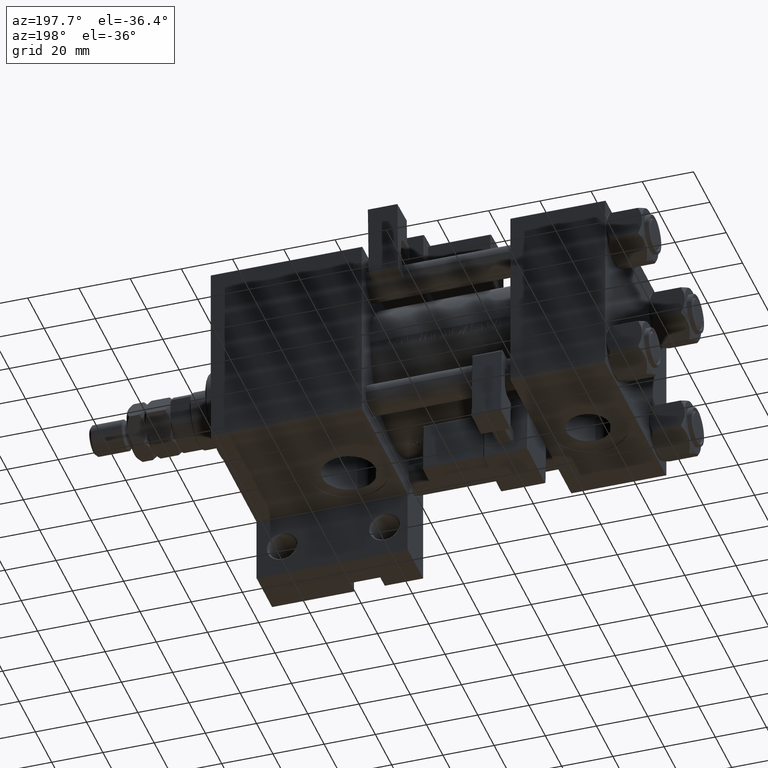
[diagram: clean part render]
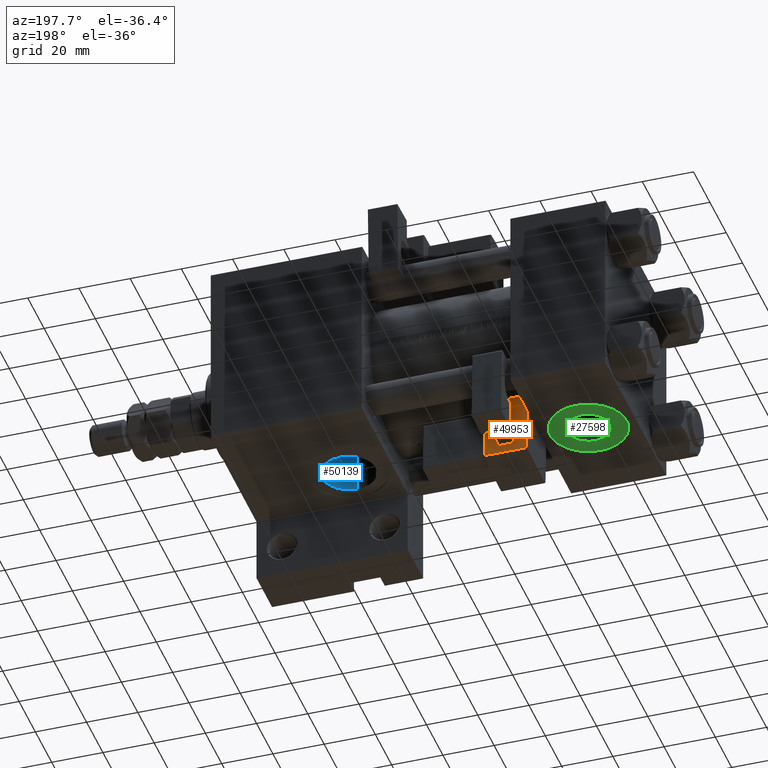
[diagram: same view with three faces highlighted in distinct colors, each labeled with its STEP entity id]
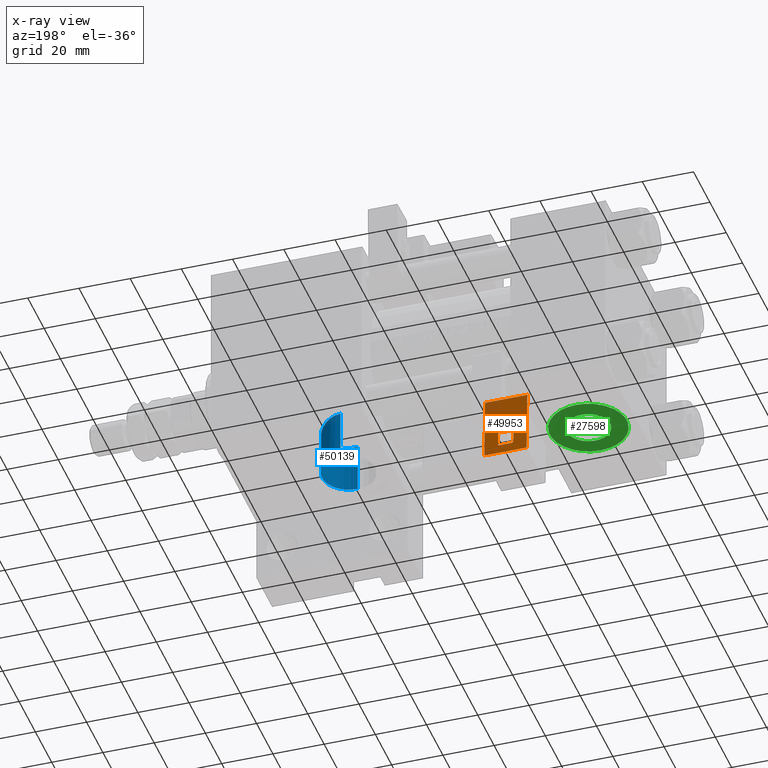
[diagram: x-ray of the same camera — body ghosted, the three highlighted faces saturated]
A machine part, auxiliary view with three faces highlighted in distinct colors.
The next image is the same camera in x-ray (body ghosted, the three faces saturated) — at least one of them is partly hidden behind the body in this view.
Their STEP definitions:

[orange] entity #49953 — the highlighted planar face has unit normal (0, 0.9994, 0.0353).
#83 = EDGE_LOOP ( 'NONE', ( #45173, #45882, #20948, #43269 ) ) ;
#849 = FACE_BOUND ( 'NONE', #10422, .T. ) ;
#1320 = DIRECTION ( 'NONE',  ( -1.000000000000000000, 0.000000000000000000, 0.000000000000000000 ) ) ;
#1529 = CARTESIAN_POINT ( 'NONE',  ( 3.000000000000000888, -17.75000000000000355, 3.000000000000000888 ) ) ;
#1678 = DIRECTION ( 'NONE',  ( 1.334402673828313339E-16, -0.000000000000000000, -1.000000000000000000 ) ) ;
#1778 = VECTOR ( 'NONE', #12145, 1000.000000000000000 ) ;
#2625 = EDGE_CURVE ( 'NONE', #41068, #28923, #13080, .T. ) ;
#3612 = VECTOR ( 'NONE', #50549, 1000.000000000000000 ) ;
#3936 = CARTESIAN_POINT ( 'NONE',  ( 3.000000000000000888, -17.75000000000000355, 3.500000000000008438 ) ) ;
#4368 = CARTESIAN_POINT ( 'NONE',  ( 3.000000000000000000, -17.75000000000000355, 8.499999999999992895 ) ) ;
#4795 = ORIENTED_EDGE ( 'NONE', *, *, #28416, .T. ) ;
#5913 = DIRECTION ( 'NONE',  ( 1.000000000000000000, -0.000000000000000000, 7.228014483236695816E-17 ) ) ;
#6217 = LINE ( 'NONE', #45211, #45724 ) ;
#6904 = DIRECTION ( 'NONE',  ( -1.000000000000000000, 0.000000000000000000, -0.000000000000000000 ) ) ;
#7762 = EDGE_CURVE ( 'NONE', #32464, #43977, #32564, .T. ) ;
#8262 = DIRECTION ( 'NONE',  ( -1.445602896647339163E-16, -0.000000000000000000, 1.000000000000000000 ) ) ;
#8392 = CARTESIAN_POINT ( 'NONE',  ( 8.250000000000003553, -17.75000000000000355, -0.5000000000000002220 ) ) ;
#9370 = PLANE ( 'NONE',  #32697 ) ;
#9462 = VECTOR ( 'NONE', #8262, 1000.000000000000000 ) ;
#9597 = LINE ( 'NONE', #36906, #30819 ) ;
#10422 = EDGE_LOOP ( 'NONE', ( #4795, #13071, #14186, #29185, #50258, #13591, #22027, #28305 ) ) ;
#12145 = DIRECTION ( 'NONE',  ( 1.000000000000000000, -0.000000000000000000, -1.982541115402065110E-16 ) ) ;
#12428 = LINE ( 'NONE', #1529, #28728 ) ;
#12664 = CARTESIAN_POINT ( 'NONE',  ( -3.000000000000000000, -17.75000000000000355, 8.500000000000000000 ) ) ;
#12900 = LINE ( 'NONE', #16297, #1778 ) ;
#13071 = ORIENTED_EDGE ( 'NONE', *, *, #7762, .T. ) ;
#13080 = LINE ( 'NONE', #44809, #42918 ) ;
#13591 = ORIENTED_EDGE ( 'NONE', *, *, #34775, .T. ) ;
#14122 = VERTEX_POINT ( 'NONE', #17113 ) ;
#14124 = CARTESIAN_POINT ( 'NONE',  ( 3.000000000000000888, -17.75000000000000355, 3.500000000000008438 ) ) ;
#14186 = ORIENTED_EDGE ( 'NONE', *, *, #43475, .T. ) ;
#15010 = LINE ( 'NONE', #39707, #35614 ) ;
#16297 = CARTESIAN_POINT ( 'NONE',  ( 8.750000000000000000, -17.75000000000000355, 24.49999999999999645 ) ) ;
#16429 = EDGE_CURVE ( 'NONE', #25717, #14122, #17320, .T. ) ;
#16602 = DIRECTION ( 'NONE',  ( -0.7071067811865474617, 0.000000000000000000, -0.7071067811865474617 ) ) ;
#17112 = LINE ( 'NONE', #44686, #36565 ) ;
#17113 = CARTESIAN_POINT ( 'NONE',  ( -3.000000000000000000, -17.75000000000000355, 3.500000000000015099 ) ) ;
#17174 = VECTOR ( 'NONE', #30709, 1000.000000000000114 ) ;
#17320 = LINE ( 'NONE', #18817, #3612 ) ;
#18508 = VERTEX_POINT ( 'NONE', #23385 ) ;
#18817 = CARTESIAN_POINT ( 'NONE',  ( -3.000000000000000000, -17.75000000000000355, 9.000000000000001776 ) ) ;
#20077 = VECTOR ( 'NONE', #6904, 1000.000000000000000 ) ;
#20948 = ORIENTED_EDGE ( 'NONE', *, *, #39503, .T. ) ;
#21651 = CARTESIAN_POINT ( 'NONE',  ( -8.250000000000003553, -17.75000000000000355, -0.5000000000000002220 ) ) ;
#22027 = ORIENTED_EDGE ( 'NONE', *, *, #23336, .T. ) ;
#23336 = EDGE_CURVE ( 'NONE', #18508, #46148, #12428, .T. ) ;
#23385 = CARTESIAN_POINT ( 'NONE',  ( -2.499999999999984013, -17.75000000000000355, 3.000000000000000444 ) ) ;
#25184 = EDGE_CURVE ( 'NONE', #46148, #28179, #38778, .T. ) ;
#25717 = VERTEX_POINT ( 'NONE', #12664 ) ;
#28179 = VERTEX_POINT ( 'NONE', #14124 ) ;
#28305 = ORIENTED_EDGE ( 'NONE', *, *, #25184, .T. ) ;
#28416 = EDGE_CURVE ( 'NONE', #28179, #32464, #43630, .T. ) ;
#28728 = VECTOR ( 'NONE', #5913, 1000.000000000000000 ) ;
#28923 = VERTEX_POINT ( 'NONE', #8392 ) ;
#29185 = ORIENTED_EDGE ( 'NONE', *, *, #41557, .T. ) ;
#30058 = CARTESIAN_POINT ( 'NONE',  ( 2.499999999999992895, -17.75000000000000355, 9.000000000000001776 ) ) ;
#30709 = DIRECTION ( 'NONE',  ( 0.7071067811865474617, -0.000000000000000000, 0.7071067811865474617 ) ) ;
#30819 = VECTOR ( 'NONE', #1320, 1000.000000000000000 ) ;
#31965 = EDGE_CURVE ( 'NONE', #28923, #38445, #49810, .T. ) ;
#32464 = VERTEX_POINT ( 'NONE', #4368 ) ;
#32564 = LINE ( 'NONE', #44267, #33139 ) ;
#32594 = VERTEX_POINT ( 'NONE', #42009 ) ;
#32697 = AXIS2_PLACEMENT_3D ( 'NONE', #48642, #41344, #33029 ) ;
#33029 = DIRECTION ( 'NONE',  ( 0.000000000000000000, -0.000000000000000000, 1.000000000000000000 ) ) ;
#33139 = VECTOR ( 'NONE', #40621, 1000.000000000000114 ) ;
#34775 = EDGE_CURVE ( 'NONE', #14122, #18508, #15010, .T. ) ;
#35552 = DIRECTION ( 'NONE',  ( 0.7071067811865472397, -0.000000000000000000, -0.7071067811865479058 ) ) ;
#35614 = VECTOR ( 'NONE', #35552, 999.9999999999998863 ) ;
#36084 = CARTESIAN_POINT ( 'NONE',  ( 3.000000000000000000, -17.75000000000000355, 9.000000000000001776 ) ) ;
#36565 = VECTOR ( 'NONE', #16602, 1000.000000000000114 ) ;
#36906 = CARTESIAN_POINT ( 'NONE',  ( 3.000000000000000000, -17.75000000000000355, 9.000000000000001776 ) ) ;
#38445 = VERTEX_POINT ( 'NONE', #21651 ) ;
#38448 = DIRECTION ( 'NONE',  ( 1.334402673828313093E-16, -0.000000000000000000, 1.000000000000000000 ) ) ;
#38778 = LINE ( 'NONE', #3936, #17174 ) ;
#38834 = CARTESIAN_POINT ( 'NONE',  ( 2.499999999999993339, -17.75000000000000355, 3.000000000000000888 ) ) ;
#39503 = EDGE_CURVE ( 'NONE', #32594, #41068, #12900, .T. ) ;
#39707 = CARTESIAN_POINT ( 'NONE',  ( -2.499999999999985789, -17.75000000000000355, 3.000000000000000444 ) ) ;
#40621 = DIRECTION ( 'NONE',  ( -0.7071067811865474617, -0.000000000000000000, 0.7071067811865474617 ) ) ;
#41068 = VERTEX_POINT ( 'NONE', #49698 ) ;
#41344 = DIRECTION ( 'NONE',  ( 0.000000000000000000, 1.000000000000000000, 0.000000000000000000 ) ) ;
#41557 = EDGE_CURVE ( 'NONE', #46354, #25717, #17112, .T. ) ;
#42009 = CARTESIAN_POINT ( 'NONE',  ( -8.250000000000000000, -17.75000000000000355, 24.50000000000000000 ) ) ;
#42262 = CARTESIAN_POINT ( 'NONE',  ( -8.750000000000003553, -17.75000000000000355, -0.5000000000000002220 ) ) ;
#42506 = EDGE_CURVE ( 'NONE', #38445, #32594, #6217, .T. ) ;
#42918 = VECTOR ( 'NONE', #1678, 1000.000000000000000 ) ;
#43269 = ORIENTED_EDGE ( 'NONE', *, *, #2625, .T. ) ;
#43475 = EDGE_CURVE ( 'NONE', #43977, #46354, #9597, .T. ) ;
#43630 = LINE ( 'NONE', #36084, #9462 ) ;
#43977 = VERTEX_POINT ( 'NONE', #30058 ) ;
#44267 = CARTESIAN_POINT ( 'NONE',  ( 2.499999999999992895, -17.75000000000000355, 9.000000000000001776 ) ) ;
#44686 = CARTESIAN_POINT ( 'NONE',  ( -3.000000000000000000, -17.75000000000000355, 8.500000000000000000 ) ) ;
#44809 = CARTESIAN_POINT ( 'NONE',  ( 8.250000000000003553, -17.75000000000000355, -1.000000000000000888 ) ) ;
#44990 = FACE_OUTER_BOUND ( 'NONE', #83, .T. ) ;
#45173 = ORIENTED_EDGE ( 'NONE', *, *, #31965, .T. ) ;
#45211 = CARTESIAN_POINT ( 'NONE',  ( -8.250000000000000000, -17.75000000000000355, 25.00000000000000000 ) ) ;
#45724 = VECTOR ( 'NONE', #38448, 1000.000000000000000 ) ;
#45882 = ORIENTED_EDGE ( 'NONE', *, *, #42506, .T. ) ;
#46148 = VERTEX_POINT ( 'NONE', #38834 ) ;
#46354 = VERTEX_POINT ( 'NONE', #50214 ) ;
#48642 = CARTESIAN_POINT ( 'NONE',  ( 0.000000000000000000, -17.75000000000000355, 0.000000000000000000 ) ) ;
#49698 = CARTESIAN_POINT ( 'NONE',  ( 8.250000000000000000, -17.75000000000000355, 24.49999999999999645 ) ) ;
#49810 = LINE ( 'NONE', #42262, #20077 ) ;
#49953 = ADVANCED_FACE ( 'NONE', ( #44990, #849 ), #9370, .T. ) ;
#50214 = CARTESIAN_POINT ( 'NONE',  ( -2.499999999999999556, -17.75000000000000355, 9.000000000000001776 ) ) ;
#50258 = ORIENTED_EDGE ( 'NONE', *, *, #16429, .T. ) ;
#50549 = DIRECTION ( 'NONE',  ( 0.000000000000000000, 0.000000000000000000, -1.000000000000000000 ) ) ;

[blue] entity #50139 — the highlighted cylindrical surface (edge-blend (fillet) strip) has radius 10.48 mm, axis along (0, 0, -1).
#679 = CARTESIAN_POINT ( 'NONE',  ( 112.0000000000000000, 17.31154528053460595, 10.48000000000000043 ) ) ;
#2195 = CARTESIAN_POINT ( 'NONE',  ( 122.1313400484387728, 20.38402300144351997, -2.703149403782802995 ) ) ;
#2787 = ORIENTED_EDGE ( 'NONE', *, *, #35312, .F. ) ;
#4045 = CARTESIAN_POINT ( 'NONE',  ( 121.0567568288617792, 19.66642481962862377, 5.316205888039934102 ) ) ;
#4559 = CARTESIAN_POINT ( 'NONE',  ( 112.7065125793993161, 17.31154528053461661, 10.48000000000000220 ) ) ;
#5053 = CARTESIAN_POINT ( 'NONE',  ( 120.2840964997319162, 19.29588801359578554, 6.427860973664106581 ) ) ;
#5080 = DIRECTION ( 'NONE',  ( -0.000000000000000000, 1.000000000000000000, -0.000000000000000000 ) ) ;
#6073 = CARTESIAN_POINT ( 'NONE',  ( 121.7782770868340378, 20.04959189068082637, 3.785672786166644155 ) ) ;
#6333 = CARTESIAN_POINT ( 'NONE',  ( 114.7532228650046875, 18.10418172122859914, -10.11778454073332334 ) ) ;
#7341 = CARTESIAN_POINT ( 'NONE',  ( 112.0000000000000000, -29.64191626734007912, 10.48000000000000043 ) ) ;
#7446 = VERTEX_POINT ( 'NONE', #21025 ) ;
#7904 = ORIENTED_EDGE ( 'NONE', *, *, #20448, .T. ) ;
#8941 = CARTESIAN_POINT ( 'NONE',  ( 118.9077004520197391, 18.70668563940341045, 7.888372044495412183 ) ) ;
#9193 = CARTESIAN_POINT ( 'NONE',  ( 117.2783431988158043, 18.62296132975359342, -9.079578748231059038 ) ) ;
#9453 = CARTESIAN_POINT ( 'NONE',  ( 122.1919247727339695, 20.28736638140614801, 2.464686719504276979 ) ) ;
#9710 = CARTESIAN_POINT ( 'NONE',  ( 120.3141828187854827, 19.63782882888615688, -6.389153202019591582 ) ) ;
#9966 = CARTESIAN_POINT ( 'NONE',  ( 118.4153515171921214, 18.95642794454904489, -8.315222310959265783 ) ) ;
#10222 = CARTESIAN_POINT ( 'NONE',  ( 112.0000000000000000, 37.30000000000000426, 0.000000000000000000 ) ) ;
#11035 = VERTEX_POINT ( 'NONE', #41579 ) ;
#12587 = CARTESIAN_POINT ( 'NONE',  ( 117.2741106061284029, 18.12798239970752334, 9.081468815119972504 ) ) ;
#13083 = CARTESIAN_POINT ( 'NONE',  ( 122.4024068837043160, 20.41859243686805314, 1.448715230588819791 ) ) ;
#13341 = CARTESIAN_POINT ( 'NONE',  ( 112.0000000000000000, 17.90669148670407296, -10.48000000000000043 ) ) ;
#13603 = CARTESIAN_POINT ( 'NONE',  ( 114.4123981559800285, 18.05763687149332242, -10.20452973485487469 ) ) ;
#13863 = CARTESIAN_POINT ( 'NONE',  ( 118.9365291620788128, 19.13037051995643267, -7.884902224686587857 ) ) ;
#14114 = CARTESIAN_POINT ( 'NONE',  ( 113.3864931790418780, 17.94550264092830005, -10.41128256049766243 ) ) ;
#14630 = DIRECTION ( 'NONE',  ( 0.000000000000000000, 0.000000000000000000, 1.000000000000000000 ) ) ;
#14810 = FACE_OUTER_BOUND ( 'NONE', #45058, .T. ) ;
#16261 = LINE ( 'NONE', #20932, #43703 ) ;
#18300 = AXIS2_PLACEMENT_3D ( 'NONE', #10222, #19055, #14630 ) ;
#18402 = VERTEX_POINT ( 'NONE', #29885 ) ;
#19055 = DIRECTION ( 'NONE',  ( 0.000000000000000000, 1.000000000000000000, 0.000000000000000000 ) ) ;
#20399 = CARTESIAN_POINT ( 'NONE',  ( 113.3977602511280622, 17.35691331444760621, 10.40932707480384423 ) ) ;
#20448 = EDGE_CURVE ( 'NONE', #18402, #29499, #47117, .T. ) ;
#20657 = CARTESIAN_POINT ( 'NONE',  ( 119.1554208622046644, 18.80582463005525540, 7.664325674930272392 ) ) ;
#20932 = CARTESIAN_POINT ( 'NONE',  ( 112.0000000000000000, -29.64191626734007912, -10.48000000000000043 ) ) ;
#21025 = CARTESIAN_POINT ( 'NONE',  ( 112.0000000000000000, 37.30000000000000426, -10.48000000000000043 ) ) ;
#21406 = CARTESIAN_POINT ( 'NONE',  ( 122.3494634545674131, 20.46856729766160043, -1.685113129936549603 ) ) ;
#21893 = AXIS2_PLACEMENT_3D ( 'NONE', #30676, #34319, #46539 ) ;
#21921 = CARTESIAN_POINT ( 'NONE',  ( 122.2152032703284021, 20.41770509924759835, -2.366563374174189160 ) ) ;
#22594 = EDGE_CURVE ( 'NONE', #11035, #7446, #16261, .T. ) ;
#23795 = CARTESIAN_POINT ( 'NONE',  ( 120.4885550367316966, 19.39180942520643924, 6.155400532351054110 ) ) ;
#24798 = CARTESIAN_POINT ( 'NONE',  ( 119.6288903148261511, 19.00342328076638765, 7.193189023723796538 ) ) ;
#25306 = CARTESIAN_POINT ( 'NONE',  ( 116.6790920904683020, 18.46855674011253257, -9.402201972048073841 ) ) ;
#25814 = CARTESIAN_POINT ( 'NONE',  ( 115.7358006500758165, 18.27098101874567604, -9.797470065351564728 ) ) ;
#26079 = CARTESIAN_POINT ( 'NONE',  ( 122.4818830706633577, 20.50187866395079794, -0.2874684842743789326 ) ) ;
#28944 = CARTESIAN_POINT ( 'NONE',  ( 122.4756842127889485, 20.47313034071807891, 0.7608440181563548288 ) ) ;
#29468 = CARTESIAN_POINT ( 'NONE',  ( 112.6963768780896373, 17.90669148670407651, -10.48000000000000398 ) ) ;
#29499 = VERTEX_POINT ( 'NONE', #45992 ) ;
#29718 = CARTESIAN_POINT ( 'NONE',  ( 121.8969941956776921, 20.11588391330656478, 3.464114667271957604 ) ) ;
#29885 = CARTESIAN_POINT ( 'NONE',  ( 112.0000000000000000, 17.31154528053460595, 10.48000000000000043 ) ) ;
#30676 = CARTESIAN_POINT ( 'NONE',  ( 112.0000000000000000, -29.64191626734007912, 0.000000000000000000 ) ) ;
#31599 = CIRCLE ( 'NONE', #18300, 10.48000000000000043 ) ;
#32357 = CARTESIAN_POINT ( 'NONE',  ( 114.7488058041888195, 17.53568414158152322, 10.11903478889501784 ) ) ;
#32604 = CARTESIAN_POINT ( 'NONE',  ( 118.1180775925098203, 18.41235417149184528, 8.515530294905145681 ) ) ;
#33108 = CARTESIAN_POINT ( 'NONE',  ( 122.4661984625920184, 20.50248344613017437, -0.6419473178149542880 ) ) ;
#34319 = DIRECTION ( 'NONE',  ( -0.000000000000000000, 1.000000000000000000, -0.000000000000000000 ) ) ;
#35312 = EDGE_CURVE ( 'NONE', #18402, #11035, #45368, .T. ) ;
#36258 = CARTESIAN_POINT ( 'NONE',  ( 114.4136788758756182, 17.48366213318432472, 10.20411241860954021 ) ) ;
#37014 = CARTESIAN_POINT ( 'NONE',  ( 115.4137194308145808, 18.21074697844700196, -9.914450050545708493 ) ) ;
#37791 = CARTESIAN_POINT ( 'NONE',  ( 122.3998623926235325, 20.48575010120457662, -1.340249540835263486 ) ) ;
#38986 = EDGE_CURVE ( 'NONE', #29499, #7446, #31599, .T. ) ;
#39063 = DIRECTION ( 'NONE',  ( -0.000000000000000000, 1.000000000000000000, -0.000000000000000000 ) ) ;
#39646 = CARTESIAN_POINT ( 'NONE',  ( 121.3793288346168424, 19.83347954257385481, 4.724518550649254856 ) ) ;
#40416 = CARTESIAN_POINT ( 'NONE',  ( 118.3895294509655542, 18.51012096600892676, 8.313642549596085729 ) ) ;
#40659 = CARTESIAN_POINT ( 'NONE',  ( 119.8546384176099338, 19.10188851773367347, 6.946100117492514769 ) ) ;
#41579 = CARTESIAN_POINT ( 'NONE',  ( 112.0000000000000000, 17.90669148670407296, -10.48000000000000043 ) ) ;
#41685 = CARTESIAN_POINT ( 'NONE',  ( 121.9301004584133636, 20.30113788468792180, -3.368111156433044595 ) ) ;
#41865 = CYLINDRICAL_SURFACE ( 'NONE', #21893, 10.48000000000000043 ) ;
#41944 = CARTESIAN_POINT ( 'NONE',  ( 120.5193670873788676, 19.71882002041633797, -6.112888062289208335 ) ) ;
#43550 = CARTESIAN_POINT ( 'NONE',  ( 115.4121189820832427, 17.65759962146493578, 9.915051309000729063 ) ) ;
#43565 = VECTOR ( 'NONE', #39063, 1000.000000000000000 ) ;
#43703 = VECTOR ( 'NONE', #5080, 1000.000000000000000 ) ;
#44560 = CARTESIAN_POINT ( 'NONE',  ( 116.6797281148894996, 17.95256551288195368, 9.401895445634405490 ) ) ;
#44812 = CARTESIAN_POINT ( 'NONE',  ( 121.8118912893011299, 20.25158130098621001, -3.698297414165519381 ) ) ;
#45058 = EDGE_LOOP ( 'NONE', ( #48450, #2787, #7904, #48164 ) ) ;
#45068 = CARTESIAN_POINT ( 'NONE',  ( 121.4130465560129863, 20.08421627984953872, -4.658949697204129770 ) ) ;
#45368 = B_SPLINE_CURVE_WITH_KNOTS ( 'NONE', 3,
 ( #679, #4559, #20399, #36258, #32357, #43550, #48221, #44560, #12587, #32604, #40416, #8941, #20657, #24798, #40659, #5053, #23795, #4045, #39646, #6073, #29718, #49235, #9453, #13083, #28944, #26079, #33108, #37791, #21406, #21921, #2195, #41685, #44812, #45068, #49499, #41944, #9710, #48976, #45577, #13863, #9966, #9193, #25306, #25814, #37014, #6333, #13603, #14114, #29468, #13341 ),
 .UNSPECIFIED., .F., .F.,
 ( 4, 2, 2, 2, 2, 2, 2, 2, 2, 2, 2, 2, 2, 2, 2, 2, 2, 2, 2, 2, 2, 2, 2, 2, 4 ),
 ( 0.000000000000000000, 0.002085356302422565738, 0.003128034453633849257, 0.004170712604845133210, 0.006256068907267737546, 0.007298747058479039714, 0.008341425209690342749, 0.009384103360901644916, 0.01042678151211294708, 0.01251213781453552887, 0.01355481596574681889, 0.01459749411695810892, 0.01668285041938069244, 0.01772552857059198073, 0.01876820672180326902, 0.01981088487301456424, 0.02085356302422585253, 0.02293891932664844993, 0.02398159747785976598, 0.02502427562907107508, 0.02710963193149372799, 0.02919498823391638437, 0.03023766638512773164, 0.03128034453633907197, 0.03336570083876173182 ),
 .UNSPECIFIED. ) ;
#45577 = CARTESIAN_POINT ( 'NONE',  ( 119.6529781020890368, 19.38699818917066509, -7.167740658412212085 ) ) ;
#45992 = CARTESIAN_POINT ( 'NONE',  ( 112.0000000000000000, 37.30000000000000426, 10.48000000000000043 ) ) ;
#46539 = DIRECTION ( 'NONE',  ( 0.000000000000000000, 0.000000000000000000, 1.000000000000000000 ) ) ;
#47117 = LINE ( 'NONE', #7341, #43565 ) ;
#48164 = ORIENTED_EDGE ( 'NONE', *, *, #38986, .T. ) ;
#48221 = CARTESIAN_POINT ( 'NONE',  ( 115.7362668611024503, 17.72678080038908988, 9.797294689995299066 ) ) ;
#48450 = ORIENTED_EDGE ( 'NONE', *, *, #22594, .F. ) ;
#48976 = CARTESIAN_POINT ( 'NONE',  ( 119.8808021426440291, 19.47185691513783823, -6.916637345673246173 ) ) ;
#49235 = CARTESIAN_POINT ( 'NONE',  ( 122.1042918256032408, 20.23503505200918084, 2.802475912533815450 ) ) ;
#49499 = CARTESIAN_POINT ( 'NONE',  ( 121.0891904452929140, 19.94802069917616905, -5.261509400881296372 ) ) ;
#50139 = ADVANCED_FACE ( 'NONE', ( #14810 ), #41865, .F. ) ;

[green] entity #27598 — the highlighted planar face has unit normal (0, 0, -1).
#437 = CARTESIAN_POINT ( 'NONE',  ( 18.50000000000000000, 37.29999999999999005, 0.000000000000000000 ) ) ;
#683 = EDGE_CURVE ( 'NONE', #30749, #48127, #13881, .T. ) ;
#1835 = ORIENTED_EDGE ( 'NONE', *, *, #683, .T. ) ;
#4962 = CARTESIAN_POINT ( 'NONE',  ( 18.50000000000000000, 37.29999999999999005, 15.00000000000000178 ) ) ;
#6438 = AXIS2_PLACEMENT_3D ( 'NONE', #42512, #46153, #6895 ) ;
#6895 = DIRECTION ( 'NONE',  ( 0.000000000000000000, 0.000000000000000000, 1.000000000000000000 ) ) ;
#8235 = CARTESIAN_POINT ( 'NONE',  ( 18.50000000000000355, 37.29999999999999005, -15.00000000000000178 ) ) ;
#8794 = ORIENTED_EDGE ( 'NONE', *, *, #42967, .F. ) ;
#9112 = ORIENTED_EDGE ( 'NONE', *, *, #23945, .F. ) ;
#10362 = AXIS2_PLACEMENT_3D ( 'NONE', #14025, #22614, #30411 ) ;
#13097 = DIRECTION ( 'NONE',  ( 0.000000000000000000, 0.000000000000000000, 1.000000000000000000 ) ) ;
#13881 = CIRCLE ( 'NONE', #6438, 15.00000000000000178 ) ;
#14025 = CARTESIAN_POINT ( 'NONE',  ( 18.50000000000000000, 37.29999999999999005, 0.000000000000000000 ) ) ;
#14284 = PLANE ( 'NONE',  #10362 ) ;
#18861 = CARTESIAN_POINT ( 'NONE',  ( 18.50000000000000000, 37.29999999999999005, 0.000000000000000000 ) ) ;
#20436 = VERTEX_POINT ( 'NONE', #35158 ) ;
#22096 = FACE_BOUND ( 'NONE', #45700, .T. ) ;
#22413 = DIRECTION ( 'NONE',  ( 0.000000000000000000, 0.000000000000000000, 1.000000000000000000 ) ) ;
#22614 = DIRECTION ( 'NONE',  ( 0.000000000000000000, 1.000000000000000000, 0.000000000000000000 ) ) ;
#22966 = CIRCLE ( 'NONE', #43745, 8.500000000000000000 ) ;
#23945 = EDGE_CURVE ( 'NONE', #20436, #46340, #22966, .T. ) ;
#24282 = EDGE_LOOP ( 'NONE', ( #45288, #1835 ) ) ;
#25050 = AXIS2_PLACEMENT_3D ( 'NONE', #18861, #46424, #50857 ) ;
#26570 = DIRECTION ( 'NONE',  ( 0.000000000000000000, 1.000000000000000000, 0.000000000000000000 ) ) ;
#27598 = ADVANCED_FACE ( 'NONE', ( #22096, #49661 ), #14284, .T. ) ;
#28359 = CIRCLE ( 'NONE', #25050, 15.00000000000000178 ) ;
#30411 = DIRECTION ( 'NONE',  ( 0.000000000000000000, -0.000000000000000000, 1.000000000000000000 ) ) ;
#30749 = VERTEX_POINT ( 'NONE', #8235 ) ;
#34114 = AXIS2_PLACEMENT_3D ( 'NONE', #437, #44072, #13097 ) ;
#34605 = CARTESIAN_POINT ( 'NONE',  ( 18.50000000000000000, 37.29999999999999005, -8.500000000000000000 ) ) ;
#35158 = CARTESIAN_POINT ( 'NONE',  ( 18.50000000000000000, 37.29999999999999005, 8.500000000000000000 ) ) ;
#38800 = CARTESIAN_POINT ( 'NONE',  ( 18.50000000000000000, 37.29999999999999005, 0.000000000000000000 ) ) ;
#41572 = CIRCLE ( 'NONE', #34114, 8.500000000000000000 ) ;
#42512 = CARTESIAN_POINT ( 'NONE',  ( 18.50000000000000000, 37.29999999999999005, 0.000000000000000000 ) ) ;
#42967 = EDGE_CURVE ( 'NONE', #46340, #20436, #41572, .T. ) ;
#43745 = AXIS2_PLACEMENT_3D ( 'NONE', #38800, #26570, #22413 ) ;
#44072 = DIRECTION ( 'NONE',  ( 0.000000000000000000, 1.000000000000000000, 0.000000000000000000 ) ) ;
#44909 = EDGE_CURVE ( 'NONE', #48127, #30749, #28359, .T. ) ;
#45288 = ORIENTED_EDGE ( 'NONE', *, *, #44909, .T. ) ;
#45700 = EDGE_LOOP ( 'NONE', ( #9112, #8794 ) ) ;
#46153 = DIRECTION ( 'NONE',  ( 0.000000000000000000, 1.000000000000000000, 0.000000000000000000 ) ) ;
#46340 = VERTEX_POINT ( 'NONE', #34605 ) ;
#46424 = DIRECTION ( 'NONE',  ( 0.000000000000000000, 1.000000000000000000, 0.000000000000000000 ) ) ;
#48127 = VERTEX_POINT ( 'NONE', #4962 ) ;
#49661 = FACE_OUTER_BOUND ( 'NONE', #24282, .T. ) ;
#50857 = DIRECTION ( 'NONE',  ( 0.000000000000000000, 0.000000000000000000, 1.000000000000000000 ) ) ;